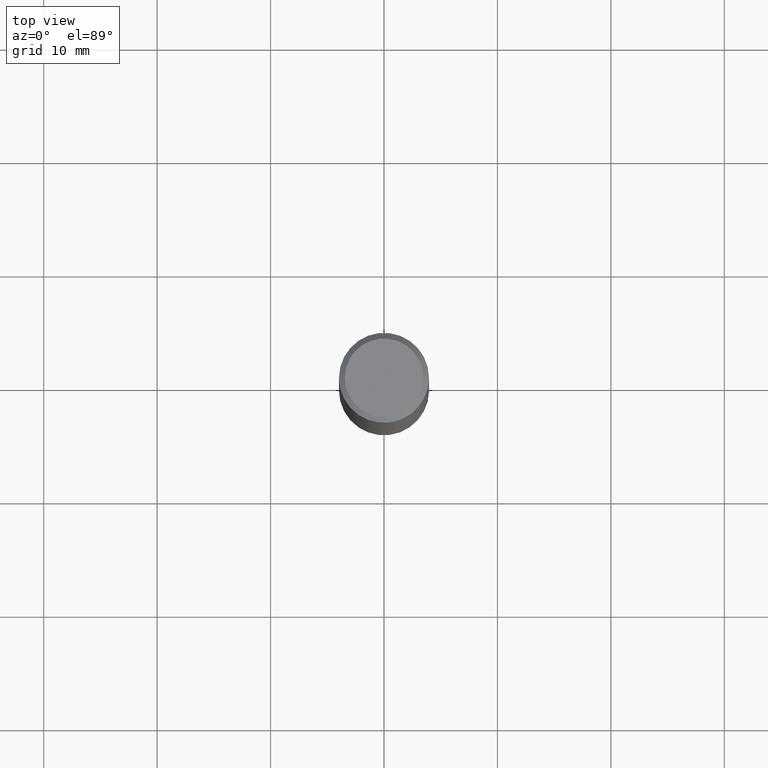
[diagram: clean part render]
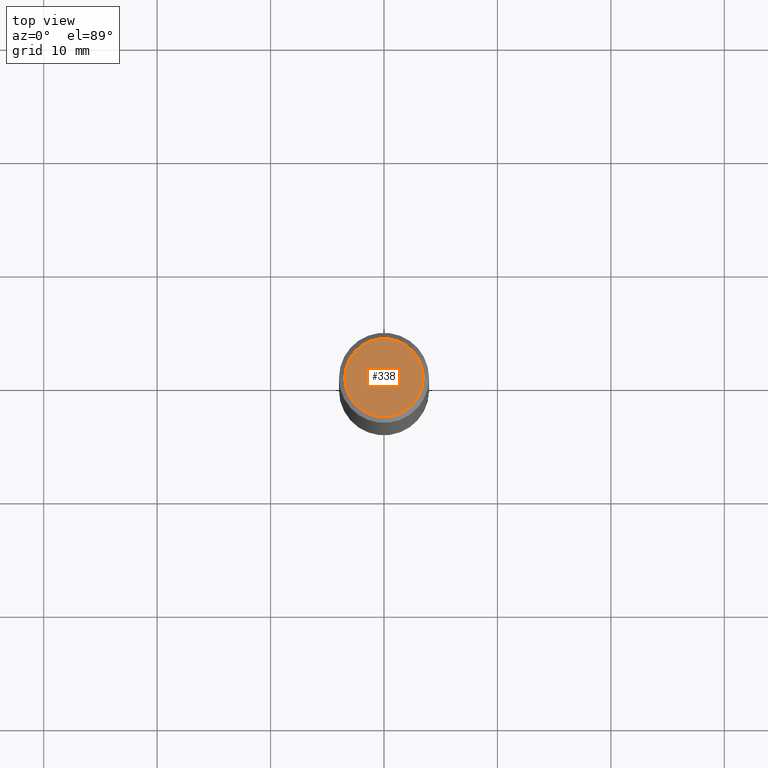
[diagram: same view with one face highlighted and labeled with its STEP entity id]
A machine part, top view. The second image highlights one B-rep face of the part: STEP entity #338.
In plain terms, the highlighted planar face has unit normal (0, -0, -1).
Its self-contained STEP definition (entity closure, byte-faithful):
#9 = DIRECTION ( 'NONE',  ( 1.000000000000000000, -6.982962677686266711E-15, 4.876176775795935232E-29 ) ) ;
#13 = DIRECTION ( 'NONE',  ( 2.438088387897960049E-29, -3.491481338843145188E-15, -1.000000000000000000 ) ) ;
#22 = CARTESIAN_POINT ( 'NONE',  ( 0.1362499999999998157, -1.038262645562516744E-15, 6.957025900226686667E-30 ) ) ;
#33 = DIRECTION ( 'NONE',  ( -2.445468806185136597E-29, 3.491481338843145583E-15, 1.000000000000000000 ) ) ;
#48 = DIRECTION ( 'NONE',  ( 1.000000000000000000, -6.982962677686266711E-15, 4.876176775795935232E-29 ) ) ;
#50 = CARTESIAN_POINT ( 'NONE',  ( 0.000000000000000000, 0.000000000000000000, 0.000000000000000000 ) ) ;
#84 = EDGE_CURVE ( 'NONE', #104, #190, #348, .T. ) ;
#93 = CARTESIAN_POINT ( 'NONE',  ( -0.1362499999999998157, 9.863434782231836346E-16, -6.775751096333130074E-30 ) ) ;
#99 = PLANE ( 'NONE',  #207 ) ;
#104 = VERTEX_POINT ( 'NONE', #93 ) ;
#121 = CIRCLE ( 'NONE', #215, 0.1362499999999998157 ) ;
#132 = CARTESIAN_POINT ( 'NONE',  ( 0.000000000000000000, 0.000000000000000000, 0.000000000000000000 ) ) ;
#139 = ORIENTED_EDGE ( 'NONE', *, *, #84, .T. ) ;
#149 = FACE_OUTER_BOUND ( 'NONE', #162, .T. ) ;
#162 = EDGE_LOOP ( 'NONE', ( #139, #366 ) ) ;
#182 = DIRECTION ( 'NONE',  ( -2.445468806185136597E-29, 3.491481338843145583E-15, 1.000000000000000000 ) ) ;
#189 = EDGE_CURVE ( 'NONE', #190, #104, #121, .T. ) ;
#190 = VERTEX_POINT ( 'NONE', #22 ) ;
#207 = AXIS2_PLACEMENT_3D ( 'NONE', #258, #13, #261 ) ;
#215 = AXIS2_PLACEMENT_3D ( 'NONE', #50, #182, #48 ) ;
#258 = CARTESIAN_POINT ( 'NONE',  ( 9.514286648347523799E-16, 0.1362499999999998157, -4.757143324173778663E-16 ) ) ;
#261 = DIRECTION ( 'NONE',  ( -1.000000000000000000, 6.982962677686265922E-15, -4.876176775795935793E-29 ) ) ;
#338 = ADVANCED_FACE ( 'NONE', ( #149 ), #99, .F. ) ;
#348 = CIRCLE ( 'NONE', #352, 0.1362499999999998157 ) ;
#352 = AXIS2_PLACEMENT_3D ( 'NONE', #132, #33, #9 ) ;
#366 = ORIENTED_EDGE ( 'NONE', *, *, #189, .T. ) ;